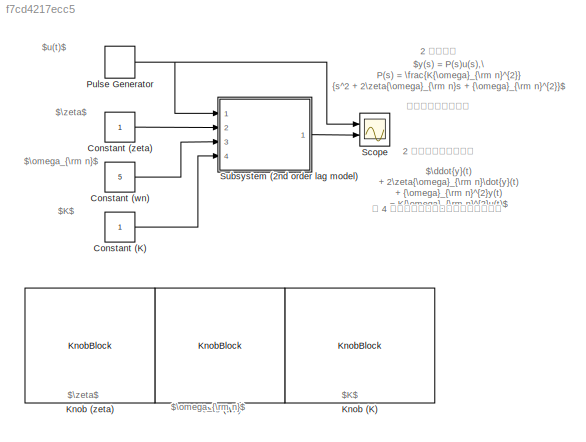
MODEL slx_f7cd4217ecc5
KIND model
CONFIG AbsTol = auto
CONFIG EnableMultiTasking = off
CONFIG FixedStep = 0.001
CONFIG MaxStep = auto
CONFIG MinStep = auto
CONFIG RelTol = 1e-3
CONFIG SampleTimeConstraint = Unconstrained
CONFIG SolverName = ode4
CONFIG StartTime = 0.0
CONFIG StopTime = inf
BLOCK [Constant] Constant (K)
BLOCK [Constant] Constant (wn)
  Value = 5
BLOCK [Constant] Constant (zeta)
BLOCK [KnobBlock] Knob (K)
  LabelPosition = Hide
  NameLocation = top
  ScaleMax = 2
  TickInterval = 0.2
BLOCK [KnobBlock] Knob (wn)
  LabelPosition = Hide
  NameLocation = top
  ScaleMax = 10
BLOCK [KnobBlock] Knob (zeta)
  LabelPosition = Hide
  NameLocation = top
  ScaleMax = 2
  TickInterval = 0.2
BLOCK [DiscretePulseGenerator] Pulse Generator
  Period = 10
  PhaseDelay = 2.5
  Ports = [0, 1]
  PulseType = Time based
  PulseWidth = 50
BLOCK [Scope] Scope
  Floating = off
  NumInputPorts = 2
  Ports = [2]
  ScopeSpecificationString = Simulink.scopes.TimeScopeBlockCfg('CurrentConfiguration', extmgr.ConfigurationSet(extmgr.Configuration('Core','General UI',true),extmgr.Configuration('Core','Source UI',true),extmgr.Configuration('Sources','WiredSimulink',true),extmgr.Configuration('Visuals','Time Domain',true,'SerializedDisplays',{struct('MinYLimReal','-1','MaxYLimReal','2.5','YLabelReal','','MinYLimMag','0.00000','MaxYLimMag','1...<+1688ch>
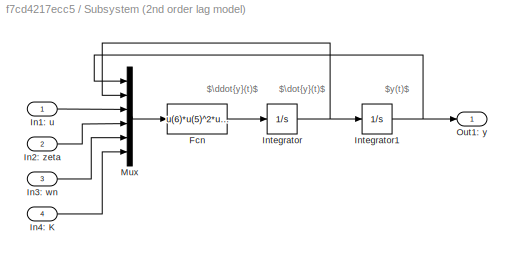
BLOCK [SubSystem] Subsystem (2nd order lag model)
  Ports = [4, 1]
  RequestExecContextInheritance = off
BLOCK [Fcn] Subsystem (2nd order lag model)/Fcn
  Expr = u(6)*u(5)^2*u(3) - 2*u(4)*u(5)*u(2) - u(5)^2*u(1)
BLOCK [Inport] Subsystem (2nd order lag model)/In1: u
BLOCK [Inport] Subsystem (2nd order lag model)/In2: zeta
  Port = 2
BLOCK [Inport] Subsystem (2nd order lag model)/In3: wn
  Port = 3
BLOCK [Inport] Subsystem (2nd order lag model)/In4: K
  Port = 4
BLOCK [Integrator] Subsystem (2nd order lag model)/Integrator
  Ports = [1, 1]
BLOCK [Integrator] Subsystem (2nd order lag model)/Integrator1
  Ports = [1, 1]
BLOCK [Mux] Subsystem (2nd order lag model)/Mux
  DisplayOption = bar
  Inputs = 6
  Ports = [6, 1]
BLOCK [Outport] Subsystem (2nd order lag model)/Out1: y
ANNOTATION (root): 2 次遅れ系
ANNOTATION (root): 2 階の線形微分方程式
ANNOTATION (root): の単位ステップ応答
ANNOTATION (root): を 4 次のルンゲ・クッタ法で解いて描画
ANNOTATION (root): $\ddot{y}(t) + 2\zeta{\omega}_{\rm n}\dot{y}(t) + {\omega}_{\rm n}^{2}y(t) = K{\omega}_{\rm n}^{2}u(t)$
ANNOTATION (root): $y(s) = P(s)u(s),\ P(s) = \frac{K{\omega}_{\rm n}^{2}} {s^2 + 2\zeta{\omega}_{\rm n}s + {\omega}_{\rm n}^{2}}$
ANNOTATION (root): $K$
ANNOTATION (root): $u(t)$
ANNOTATION (root): $\omega_{\rm n}$
ANNOTATION (root): $\zeta$
ANNOTATION Subsystem (2nd order lag model): $\ddot{y}(t)$
ANNOTATION Subsystem (2nd order lag model): $\dot{y}(t)$
ANNOTATION Subsystem (2nd order lag model): $y(t)$
LINE Constant (K):1 -> Subsystem (2nd order lag model):4
LINE Constant (wn):1 -> Subsystem (2nd order lag model):3
LINE Constant (zeta):1 -> Subsystem (2nd order lag model):2
NET Pulse Generator:1 -> Scope:1, Subsystem (2nd order lag model):1
LINE Subsystem (2nd order lag model)/Fcn:1 -> Subsystem (2nd order lag model)/Integrator:1
LINE Subsystem (2nd order lag model)/In1: u:1 -> Subsystem (2nd order lag model)/Mux:3
LINE Subsystem (2nd order lag model)/In2: zeta:1 -> Subsystem (2nd order lag model)/Mux:4
LINE Subsystem (2nd order lag model)/In3: wn:1 -> Subsystem (2nd order lag model)/Mux:5
LINE Subsystem (2nd order lag model)/In4: K:1 -> Subsystem (2nd order lag model)/Mux:6
NET Subsystem (2nd order lag model)/Integrator1:1 -> Subsystem (2nd order lag model)/Mux:1, Subsystem (2nd order lag model)/Out1: y:1
NET Subsystem (2nd order lag model)/Integrator:1 -> Subsystem (2nd order lag model)/Integrator1:1, Subsystem (2nd order lag model)/Mux:2
LINE Subsystem (2nd order lag model)/Mux:1 -> Subsystem (2nd order lag model)/Fcn:1
LINE Subsystem (2nd order lag model):1 -> Scope:2
note: NET lines group one-source signal fan-out (src -> all destinations, sorted); 1:1 wires keep LINE
